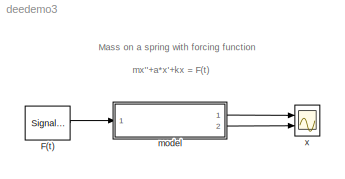
MODEL deedemo3
KIND model
CONFIG AbsTol = 1e-6
CONFIG FixedStep = auto
CONFIG MaxStep = auto
CONFIG PreLoadFcn = masspgi
CONFIG RelTol = 1e-3
CONFIG Solver = ode45
CONFIG SolverMode = SingleTasking
CONFIG StartTime = 0.0
CONFIG StopTime = 99999999999
BLOCK [SignalGenerator] F(t)
  Amplitude = 1.000000
  Frequency = 0.010000
  Units = rad/sec
  WaveForm = square
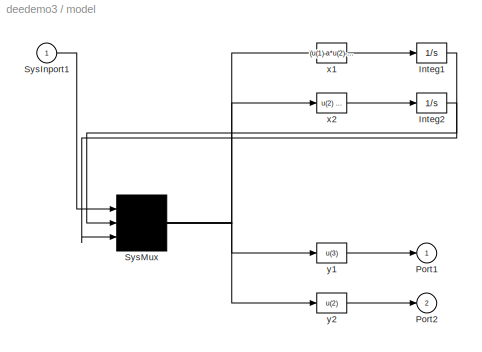
BLOCK [SubSystem] model
  MaskDisplay = disp('mass_on_a_spring')
  MaskIconFrame = on
  MaskIconOpaque = on
  MaskIconRotate = none
  MaskIconUnits = autoscale
  MaskType = Differential Equation Editor (DEE)
  OpenFcn = diffeqed
  Ports = [1, 2, 0, 0, 0]
  ShowPortLabels = on
BLOCK [Integrator] model/Integ1
  AbsoluteTolerance = auto
  ExternalReset = none
  InitialCondition = -1
  InitialConditionSource = internal
  LimitOutput = off
  LowerSaturationLimit = -inf
  Ports = [1, 1, 0, 0, 0]
  ShowSaturationPort = off
  ShowStatePort = off
  UpperSaturationLimit = inf
BLOCK [Integrator] model/Integ2
  AbsoluteTolerance = auto
  ExternalReset = none
  InitialCondition = 0
  InitialConditionSource = internal
  LimitOutput = off
  LowerSaturationLimit = -inf
  Ports = [1, 1, 0, 0, 0]
  ShowSaturationPort = off
  ShowStatePort = off
  UpperSaturationLimit = inf
BLOCK [Outport] model/Port1
  InitialOutput = 0
  OutputWhenDisabled = held
  Port = 1
BLOCK [Outport] model/Port2
  InitialOutput = 0
  OutputWhenDisabled = held
  Port = 2
BLOCK [Inport] model/SysInport1
  DataType = auto
  Interpolate = on
  Port = 1
  PortWidth = -1
  SampleTime = -1
  SignalType = auto
BLOCK [Mux] model/SysMux
  DisplayOption = none
  Inputs = 3
  Ports = [3, 1, 0, 0, 0]
BLOCK [Fcn] model/x1
  Expr = (u(1)-a*u(2)-k*u(3))/m
BLOCK [Fcn] model/x2
  Expr = u(2)
BLOCK [Fcn] model/y1
  Expr = u(3)
BLOCK [Fcn] model/y2
  Expr = u(2)
BLOCK [Scope] x
  DataFormat = Matrix
  Decimation = 1
  Floating = off
  Grid = on
  LimitMaxRows = on
  MaxRows = 5000
  NumInputPorts = 2
  Ports = [2, 0, 0, 0, 0]
  SampleInput = off
  SampleTime = 0
  SaveName = ScopeData
  SaveToWorkspace = off
  TickLabels = on
  TimeRange = 100
  YMax = 18~5
  YMin = -18~-5
  ZoomMode = on
LINE F(t):1 -> model:1
LINE model/Integ1:1 -> model/SysMux:2
LINE model/Integ2:1 -> model/SysMux:3
LINE model/SysInport1:1 -> model/SysMux:1
NET model/SysMux:1 -> model/x1:1, model/x2:1, model/y1:1, model/y2:1
LINE model/x1:1 -> model/Integ1:1
LINE model/x2:1 -> model/Integ2:1
LINE model/y1:1 -> model/Port1:1
LINE model/y2:1 -> model/Port2:1
LINE model:1 -> x:1
LINE model:2 -> x:2
note: NET lines group one-source signal fan-out (src -> all destinations, sorted); 1:1 wires keep LINE
